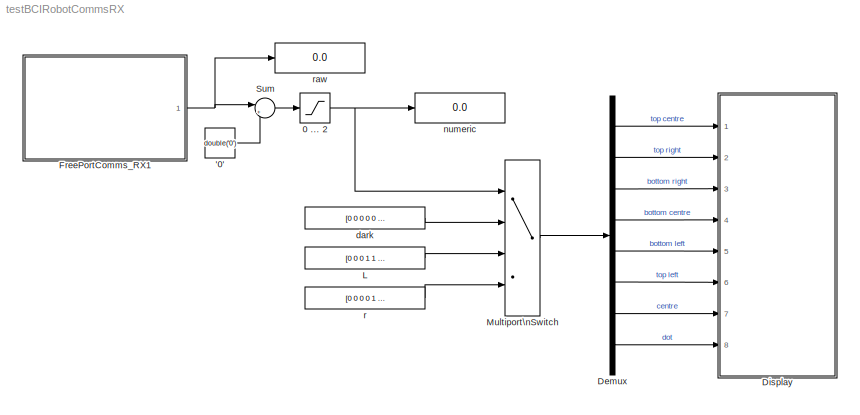
MODEL testBCIRobotCommsRX
KIND model
BLOCK [Constant] '0'
  SID = 1
  Value = double('0')
BLOCK [Saturate] 0 ... 2
  InputPortMap = u0
  LowerLimit = 0
  Ports = [1, 1]
  SID = 2
  UpperLimit = 2
BLOCK [Demux] Demux
  Outputs = 8
  Ports = [1, 8]
  SID = 3
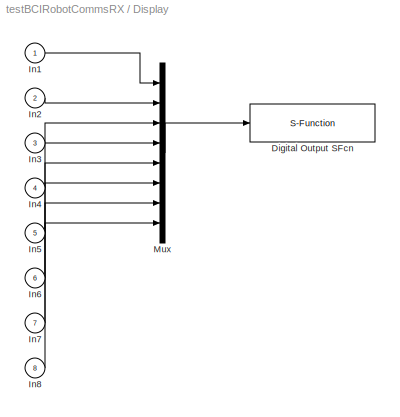
BLOCK [SubSystem] Display
  Ports = [8]
  RequestExecContextInheritance = off
  SID = 4
  ShowPortLabels = none
  Tag = mcTarget_digOut
BLOCK [S-Function] Display/Digital Output SFcn
  EnableBusSupport = off
  FunctionName = digOut_sfcn_9S12
  Parameters = sampletime, port, pins, Von, Voff
  Ports = [1]
  SFcnIsStateOwnerBlock = off
  SFunctionDeploymentMode = off
  SID = 4:9
  Tag = mcTarget_digOut
BLOCK [Inport] Display/In1
  IconDisplay = Port number
  SID = 4:1
BLOCK [Inport] Display/In2
  IconDisplay = Port number
  Port = 2
  SID = 4:2
BLOCK [Inport] Display/In3
  IconDisplay = Port number
  Port = 3
  SID = 4:3
BLOCK [Inport] Display/In4
  IconDisplay = Port number
  Port = 4
  SID = 4:4
BLOCK [Inport] Display/In5
  IconDisplay = Port number
  Port = 5
  SID = 4:5
BLOCK [Inport] Display/In6
  IconDisplay = Port number
  Port = 6
  SID = 4:6
BLOCK [Inport] Display/In7
  IconDisplay = Port number
  Port = 7
  SID = 4:7
BLOCK [Inport] Display/In8
  IconDisplay = Port number
  Port = 8
  SID = 4:8
BLOCK [Mux] Display/Mux
  DisplayOption = bar
  Inputs = 8
  Ports = [8, 1]
  SID = 4:10
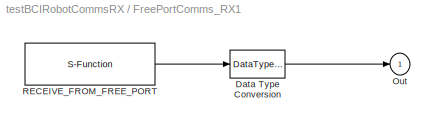
BLOCK [SubSystem] FreePortComms_RX1
  Ports = [0, 1]
  RequestExecContextInheritance = off
  SID = 13
  ShowPortLabels = none
  Tag = mcTarget_freePortCommsRX
BLOCK [DataTypeConversion] FreePortComms_RX1/Data Type Conversion
  OutDataTypeStr = double
  SID = 13:14
BLOCK [Outport] FreePortComms_RX1/Out
  IconDisplay = Port number
  SID = 13:16
BLOCK [S-Function] FreePortComms_RX1/RECEIVE_FROM_FREE_PORT
  EnableBusSupport = off
  FunctionName = freePortComms_rxd
  Parameters = sampletime, channel, buf_size, data_type, port, baudrate, format
  Ports = [0, 1]
  SFcnIsStateOwnerBlock = off
  SFunctionDeploymentMode = off
  SID = 13:15
  Tag = mcTarget_freePortCommsRX
BLOCK [Constant] L
  OutDataTypeStr = double
  SID = 6
  Value = [0 0 0 1 1 1 0 0 ]
BLOCK [MultiPortSwitch] Multiport\nSwitch
  DataPortOrder = Zero-based contiguous
  InputSameDT = off
  Ports = [4, 1]
  SID = 7
  zeroidx = on
BLOCK [Sum] Sum
  IconShape = round
  InputSameDT = off
  Inputs = |+-
  OutDataTypeStr = Inherit: Inherit via internal rule
  Ports = [2, 1]
  SID = 8
BLOCK [Constant] dark
  OutDataTypeStr = double
  SID = 9
  Value = [0 0 0 0 0 0 0 0]
BLOCK [Display] numeric
  Decimation = 1
  Ports = [1]
  SID = 10
BLOCK [Constant] r
  OutDataTypeStr = double
  SID = 11
  Value = [0 0 0 0 1 0 1 0]
BLOCK [Display] raw
  Decimation = 1
  Ports = [1]
  SID = 12
LINE '0':1 -> Sum:2
NET 0 ... 2:1 -> Multiport\nSwitch:1, numeric:1
LINE Demux:1 -> Display:1
LINE Demux:2 -> Display:2
LINE Demux:3 -> Display:3
LINE Demux:4 -> Display:4
LINE Demux:5 -> Display:5
LINE Demux:6 -> Display:6
LINE Demux:7 -> Display:7
LINE Demux:8 -> Display:8
LINE Display/In1:1 -> Display/Mux:1
LINE Display/In2:1 -> Display/Mux:2
LINE Display/In3:1 -> Display/Mux:3
LINE Display/In4:1 -> Display/Mux:4
LINE Display/In5:1 -> Display/Mux:5
LINE Display/In6:1 -> Display/Mux:6
LINE Display/In7:1 -> Display/Mux:7
LINE Display/In8:1 -> Display/Mux:8
LINE Display/Mux:1 -> Display/Digital Output SFcn:1
LINE FreePortComms_RX1/Data Type Conversion:1 -> FreePortComms_RX1/Out:1
LINE FreePortComms_RX1/RECEIVE_FROM_FREE_PORT:1 -> FreePortComms_RX1/Data Type Conversion:1
NET FreePortComms_RX1:1 -> Sum:1, raw:1
LINE L:1 -> Multiport\nSwitch:3
LINE Multiport\nSwitch:1 -> Demux:1
LINE Sum:1 -> 0 ... 2:1
LINE dark:1 -> Multiport\nSwitch:2
LINE r:1 -> Multiport\nSwitch:4
note: NET lines group one-source signal fan-out (src -> all destinations, sorted); 1:1 wires keep LINE
